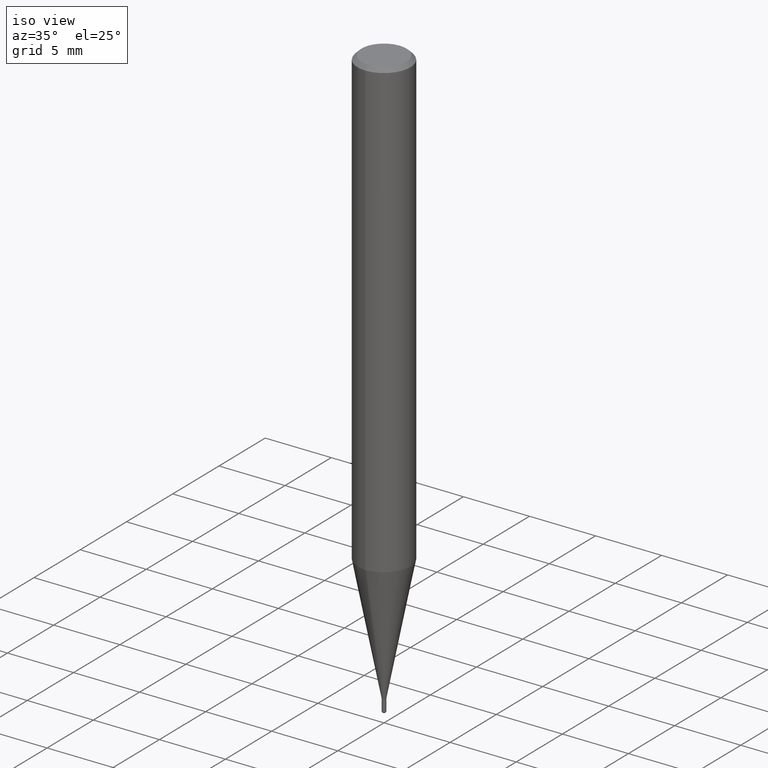
[diagram: clean part render]
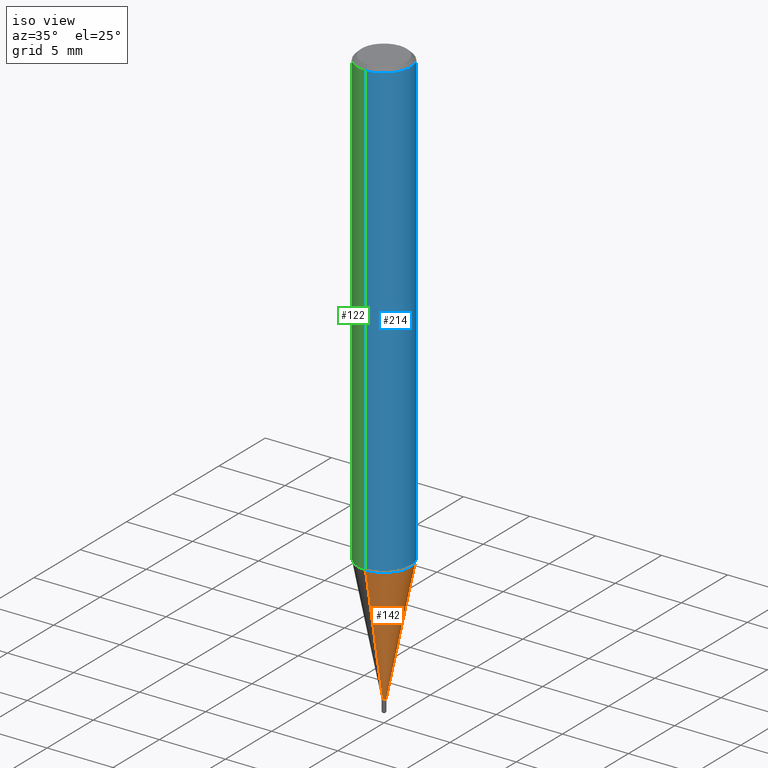
[diagram: same view with three faces highlighted in distinct colors, each labeled with its STEP entity id]
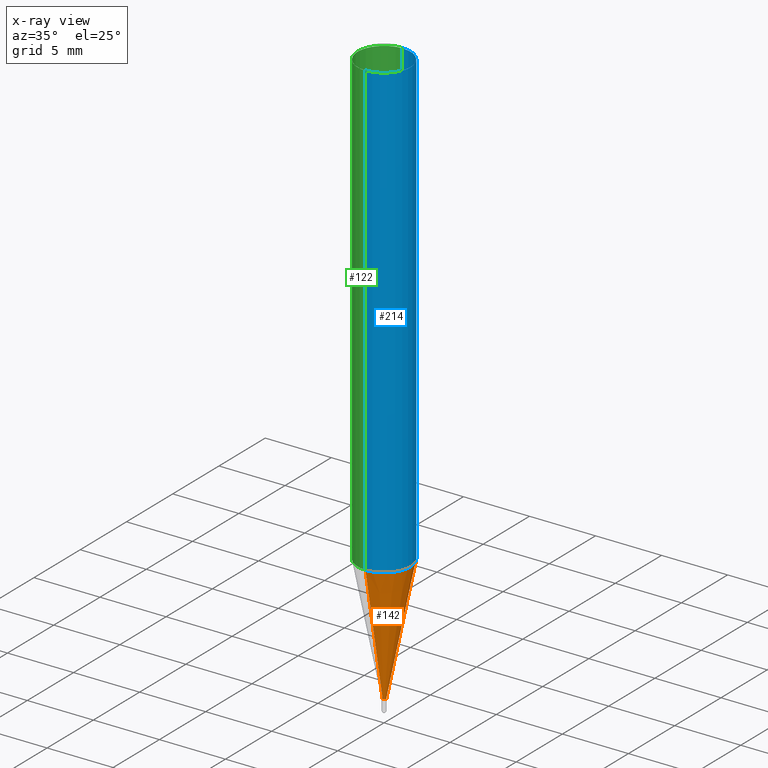
[diagram: x-ray of the same camera — body ghosted, the three highlighted faces saturated]
A machine part, iso view with three faces highlighted in distinct colors.
The next image is the same camera in x-ray (body ghosted, the three faces saturated) — at least one of them is partly hidden behind the body in this view.
Their STEP definitions:

[orange] entity #142 — the highlighted conical surface has half-angle 11 deg.
#112=VERTEX_POINT('',#256);
#118=EDGE_CURVE('',#192,#112,#262,.T.);
#128=EDGE_CURVE('',#188,#132,#274,.T.);
#132=VERTEX_POINT('',#278);
#134=EDGE_CURVE('',#192,#188,#280,.T.);
#142=ADVANCED_FACE('',(#288),#289,.T.);
#188=VERTEX_POINT('',#341);
#192=VERTEX_POINT('',#345);
#206=EDGE_CURVE('',#132,#112,#361,.T.);
#256=CARTESIAN_POINT('',(2.44915147732706E-016,-1.99995,-34.457));
#262=CIRCLE('',#422,1.99995);
#274=CIRCLE('',#437,0.14495);
#278=CARTESIAN_POINT('',(1.77506690986554E-017,-0.14495,-44.0));
#280=LINE('',#445,#446);
#288=FACE_OUTER_BOUND('',#457,.T.);
#289=CONICAL_SURFACE('',#458,1.07245,0.19198911666217);
#341=CARTESIAN_POINT('',(0.0,0.14495,-44.0));
#345=CARTESIAN_POINT('',(0.0,1.99995,-34.457));
#361=LINE('',#545,#546);
#422=AXIS2_PLACEMENT_3D('',#589,#590,#591);
#437=AXIS2_PLACEMENT_3D('',#609,#610,#611);
#445=CARTESIAN_POINT('',(-1.31332908415681E-016,1.07245,-39.2285));
#446=VECTOR('',#615,1.0);
#457=EDGE_LOOP('',(#626,#627,#628,#629));
#458=AXIS2_PLACEMENT_3D('',#630,#631,#632);
#545=CARTESIAN_POINT('',(1.31332908415681E-016,-1.07245,-39.2285));
#546=VECTOR('',#717,1.0);
#589=CARTESIAN_POINT('',(0.0,0.0,-34.457));
#590=DIRECTION('',(0.0,0.0,-1.0));
#591=DIRECTION('',(0.0,1.0,0.0));
#609=CARTESIAN_POINT('',(0.0,0.0,-44.0));
#610=DIRECTION('',(0.0,0.0,-1.0));
#611=DIRECTION('',(0.0,1.0,0.0));
#615=DIRECTION('',(2.33669392942694E-017,-0.190811841056793,-0.981626630299177));
#626=ORIENTED_EDGE('',*,*,#134,.F.);
#627=ORIENTED_EDGE('',*,*,#118,.T.);
#628=ORIENTED_EDGE('',*,*,#206,.F.);
#629=ORIENTED_EDGE('',*,*,#128,.F.);
#630=CARTESIAN_POINT('',(0.0,0.0,-39.2285));
#631=DIRECTION('',(-0.0,-0.0,1.0));
#632=DIRECTION('',(0.0,1.0,0.0));
#717=DIRECTION('',(2.33669392942694E-017,-0.190811841056793,0.981626630299177));

[blue] entity #214 — the highlighted cylindrical surface (edge-blend (fillet) strip) has radius 2 mm, axis along (-0, -0, 1).
#114=EDGE_CURVE('',#126,#166,#258,.T.);
#120=EDGE_CURVE('',#196,#144,#264,.T.);
#126=VERTEX_POINT('',#272);
#140=EDGE_CURVE('',#126,#144,#286,.T.);
#144=VERTEX_POINT('',#291);
#166=VERTEX_POINT('',#317);
#176=EDGE_CURVE('',#166,#196,#327,.T.);
#196=VERTEX_POINT('',#349);
#214=ADVANCED_FACE('',(#371),#372,.T.);
#258=LINE('',#414,#415);
#264=LINE('',#425,#426);
#272=CARTESIAN_POINT('',(0.0,2.0,-0.299999999999997));
#286=CIRCLE('',#455,2.0);
#291=CARTESIAN_POINT('',(2.44921270764475E-016,-2.0,-0.299999999999997));
#317=CARTESIAN_POINT('',(0.0,2.0,-34.457));
#327=CIRCLE('',#503,2.0);
#349=CARTESIAN_POINT('',(2.44921270764475E-016,-2.0,-34.457));
#371=FACE_OUTER_BOUND('',#556,.T.);
#372=CYLINDRICAL_SURFACE('',#557,2.0);
#414=CARTESIAN_POINT('',(-2.44921270764475E-016,2.0,-17.3785));
#415=VECTOR('',#587,1.0);
#425=CARTESIAN_POINT('',(2.44921270764475E-016,-2.0,-17.3785));
#426=VECTOR('',#592,1.0);
#455=AXIS2_PLACEMENT_3D('',#622,#623,#624);
#503=AXIS2_PLACEMENT_3D('',#681,#682,#683);
#556=EDGE_LOOP('',(#733,#734,#735,#736));
#557=AXIS2_PLACEMENT_3D('',#737,#738,#739);
#587=DIRECTION('',(0.0,0.0,-1.0));
#592=DIRECTION('',(-0.0,-0.0,1.0));
#622=CARTESIAN_POINT('',(0.0,0.0,-0.299999999999997));
#623=DIRECTION('',(0.0,0.0,-1.0));
#624=DIRECTION('',(0.0,1.0,0.0));
#681=CARTESIAN_POINT('',(0.0,0.0,-34.457));
#682=DIRECTION('',(0.0,0.0,-1.0));
#683=DIRECTION('',(0.0,1.0,0.0));
#733=ORIENTED_EDGE('',*,*,#114,.F.);
#734=ORIENTED_EDGE('',*,*,#140,.T.);
#735=ORIENTED_EDGE('',*,*,#120,.F.);
#736=ORIENTED_EDGE('',*,*,#176,.F.);
#737=CARTESIAN_POINT('',(0.0,0.0,-17.3785));
#738=DIRECTION('',(-0.0,-0.0,1.0));
#739=DIRECTION('',(0.0,1.0,0.0));

[green] entity #122 — the highlighted cylindrical surface (edge-blend (fillet) strip) has radius 2 mm, axis along (-0, -0, 1).
#114=EDGE_CURVE('',#126,#166,#258,.T.);
#120=EDGE_CURVE('',#196,#144,#264,.T.);
#122=ADVANCED_FACE('',(#266),#267,.T.);
#126=VERTEX_POINT('',#272);
#144=VERTEX_POINT('',#291);
#146=EDGE_CURVE('',#144,#126,#293,.T.);
#166=VERTEX_POINT('',#317);
#168=EDGE_CURVE('',#196,#166,#319,.T.);
#196=VERTEX_POINT('',#349);
#258=LINE('',#414,#415);
#264=LINE('',#425,#426);
#266=FACE_OUTER_BOUND('',#428,.T.);
#267=CYLINDRICAL_SURFACE('',#429,2.0);
#272=CARTESIAN_POINT('',(0.0,2.0,-0.299999999999997));
#291=CARTESIAN_POINT('',(2.44921270764475E-016,-2.0,-0.299999999999997));
#293=CIRCLE('',#463,2.0);
#317=CARTESIAN_POINT('',(0.0,2.0,-34.457));
#319=CIRCLE('',#493,2.0);
#349=CARTESIAN_POINT('',(2.44921270764475E-016,-2.0,-34.457));
#414=CARTESIAN_POINT('',(-2.44921270764475E-016,2.0,-17.3785));
#415=VECTOR('',#587,1.0);
#425=CARTESIAN_POINT('',(2.44921270764475E-016,-2.0,-17.3785));
#426=VECTOR('',#592,1.0);
#428=EDGE_LOOP('',(#594,#595,#596,#597));
#429=AXIS2_PLACEMENT_3D('',#598,#599,#600);
#463=AXIS2_PLACEMENT_3D('',#633,#634,#635);
#493=AXIS2_PLACEMENT_3D('',#671,#672,#673);
#587=DIRECTION('',(0.0,0.0,-1.0));
#592=DIRECTION('',(-0.0,-0.0,1.0));
#594=ORIENTED_EDGE('',*,*,#114,.T.);
#595=ORIENTED_EDGE('',*,*,#168,.F.);
#596=ORIENTED_EDGE('',*,*,#120,.T.);
#597=ORIENTED_EDGE('',*,*,#146,.T.);
#598=CARTESIAN_POINT('',(0.0,0.0,-17.3785));
#599=DIRECTION('',(-0.0,-0.0,1.0));
#600=DIRECTION('',(0.0,1.0,0.0));
#633=CARTESIAN_POINT('',(0.0,0.0,-0.299999999999997));
#634=DIRECTION('',(0.0,0.0,-1.0));
#635=DIRECTION('',(0.0,1.0,0.0));
#671=CARTESIAN_POINT('',(0.0,0.0,-34.457));
#672=DIRECTION('',(0.0,0.0,-1.0));
#673=DIRECTION('',(0.0,1.0,0.0));